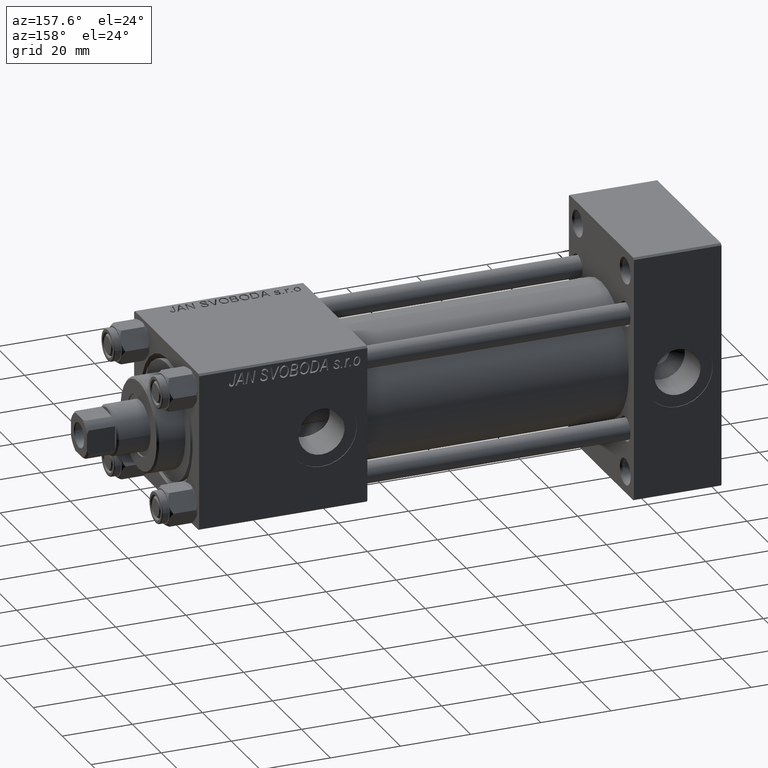
[diagram: clean part render]
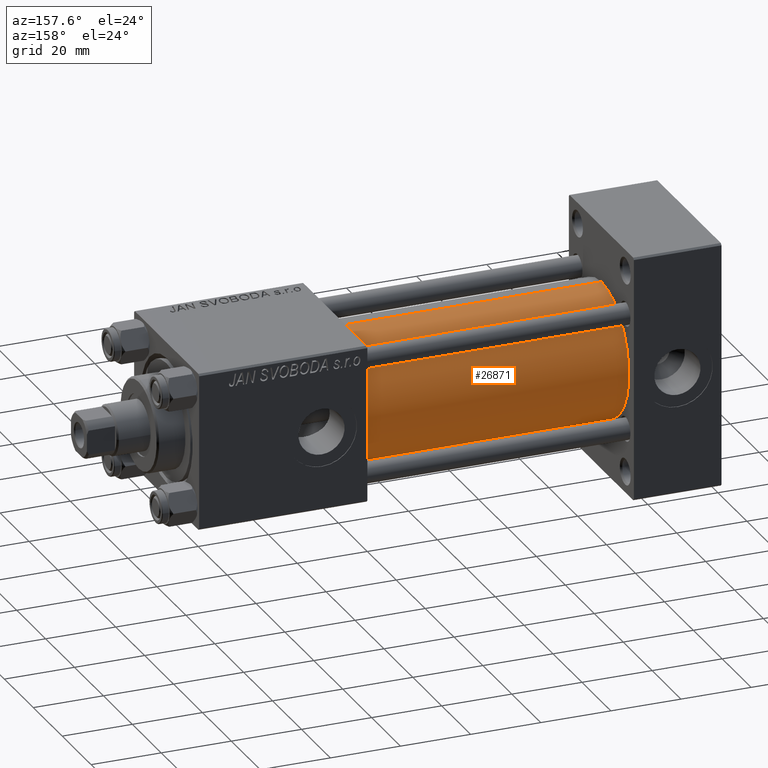
[diagram: same view with one face highlighted and labeled with its STEP entity id]
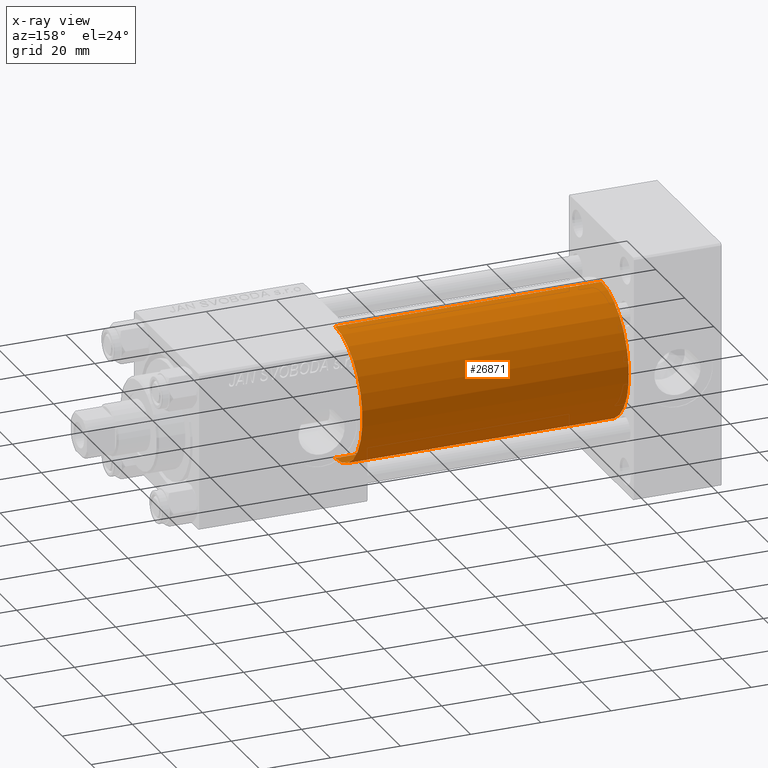
[diagram: x-ray of the same camera — body ghosted, the highlighted face saturated]
A machine part, auxiliary view. The second image highlights one B-rep face of the part: STEP entity #26871.
The next image is the same camera in x-ray: the body ghosted, the highlighted face saturated — about 0% of this face is hidden behind the body in this view.
In plain terms, the highlighted cylindrical surface (partial cylindrical patch) has radius 19 mm, axis along (-1, -0, -0).
Its self-contained STEP definition (entity closure, byte-faithful):
#286 = DIRECTION ( 'NONE',  ( 0.000000000000000000, 0.000000000000000000, 1.000000000000000000 ) ) ;
#1080 = ORIENTED_EDGE ( 'NONE', *, *, #12310, .F. ) ;
#4171 = VERTEX_POINT ( 'NONE', #49682 ) ;
#4213 = DIRECTION ( 'NONE',  ( -1.000000000000000000, -0.000000000000000000, -0.000000000000000000 ) ) ;
#4257 = ORIENTED_EDGE ( 'NONE', *, *, #41067, .T. ) ;
#4269 = CARTESIAN_POINT ( 'NONE',  ( 101.0000000000000000, -2.752562955852396712E-16, -19.00000000000000000 ) ) ;
#4986 = CARTESIAN_POINT ( 'NONE',  ( 101.0000000000000000, -2.602085213965210642E-15, 0.000000000000000000 ) ) ;
#7889 = CARTESIAN_POINT ( 'NONE',  ( 24.99999999999999289, -2.602085213965210642E-15, 0.000000000000000000 ) ) ;
#7930 = CYLINDRICAL_SURFACE ( 'NONE', #23722, 19.00000000000000000 ) ;
#11070 = CARTESIAN_POINT ( 'NONE',  ( 101.0000000000000000, -2.602085213965210642E-15, 19.00000000000000000 ) ) ;
#11805 = LINE ( 'NONE', #11070, #17666 ) ;
#12310 = EDGE_CURVE ( 'NONE', #38223, #44493, #22259, .T. ) ;
#12388 = CARTESIAN_POINT ( 'NONE',  ( 24.99999999999999289, -2.602085213965210642E-15, 19.00000000000000000 ) ) ;
#17666 = VECTOR ( 'NONE', #4213, 1000.000000000000000 ) ;
#20083 = EDGE_CURVE ( 'NONE', #44493, #25935, #11805, .T. ) ;
#22259 = CIRCLE ( 'NONE', #26294, 19.00000000000000000 ) ;
#22818 = DIRECTION ( 'NONE',  ( 1.000000000000000000, -0.000000000000000000, 0.000000000000000000 ) ) ;
#23722 = AXIS2_PLACEMENT_3D ( 'NONE', #35450, #38742, #34947 ) ;
#24565 = CARTESIAN_POINT ( 'NONE',  ( 101.0000000000000000, -2.602085213965210642E-15, 19.00000000000000000 ) ) ;
#24698 = DIRECTION ( 'NONE',  ( 0.000000000000000000, 0.000000000000000000, -1.000000000000000000 ) ) ;
#25727 = LINE ( 'NONE', #38079, #36944 ) ;
#25935 = VERTEX_POINT ( 'NONE', #12388 ) ;
#26294 = AXIS2_PLACEMENT_3D ( 'NONE', #4986, #34631, #24698 ) ;
#26871 = ADVANCED_FACE ( 'NONE', ( #42530 ), #7930, .T. ) ;
#30795 = EDGE_CURVE ( 'NONE', #4171, #25935, #47217, .T. ) ;
#34631 = DIRECTION ( 'NONE',  ( 1.000000000000000000, 0.000000000000000000, 0.000000000000000000 ) ) ;
#34947 = DIRECTION ( 'NONE',  ( 0.000000000000000000, 0.000000000000000000, 1.000000000000000000 ) ) ;
#35450 = CARTESIAN_POINT ( 'NONE',  ( 101.0000000000000000, -2.602085213965210642E-15, 0.000000000000000000 ) ) ;
#36944 = VECTOR ( 'NONE', #41874, 1000.000000000000000 ) ;
#38079 = CARTESIAN_POINT ( 'NONE',  ( 101.0000000000000000, -2.752562955852396712E-16, -19.00000000000000000 ) ) ;
#38223 = VERTEX_POINT ( 'NONE', #4269 ) ;
#38742 = DIRECTION ( 'NONE',  ( -1.000000000000000000, -0.000000000000000000, -0.000000000000000000 ) ) ;
#39143 = AXIS2_PLACEMENT_3D ( 'NONE', #7889, #22818, #286 ) ;
#41067 = EDGE_CURVE ( 'NONE', #38223, #4171, #25727, .T. ) ;
#41874 = DIRECTION ( 'NONE',  ( -1.000000000000000000, -0.000000000000000000, -0.000000000000000000 ) ) ;
#42530 = FACE_OUTER_BOUND ( 'NONE', #45061, .T. ) ;
#44297 = ORIENTED_EDGE ( 'NONE', *, *, #30795, .T. ) ;
#44493 = VERTEX_POINT ( 'NONE', #24565 ) ;
#45061 = EDGE_LOOP ( 'NONE', ( #1080, #4257, #44297, #49172 ) ) ;
#47217 = CIRCLE ( 'NONE', #39143, 19.00000000000000000 ) ;
#49172 = ORIENTED_EDGE ( 'NONE', *, *, #20083, .F. ) ;
#49682 = CARTESIAN_POINT ( 'NONE',  ( 24.99999999999999289, -2.752562955852396712E-16, -19.00000000000000000 ) ) ;